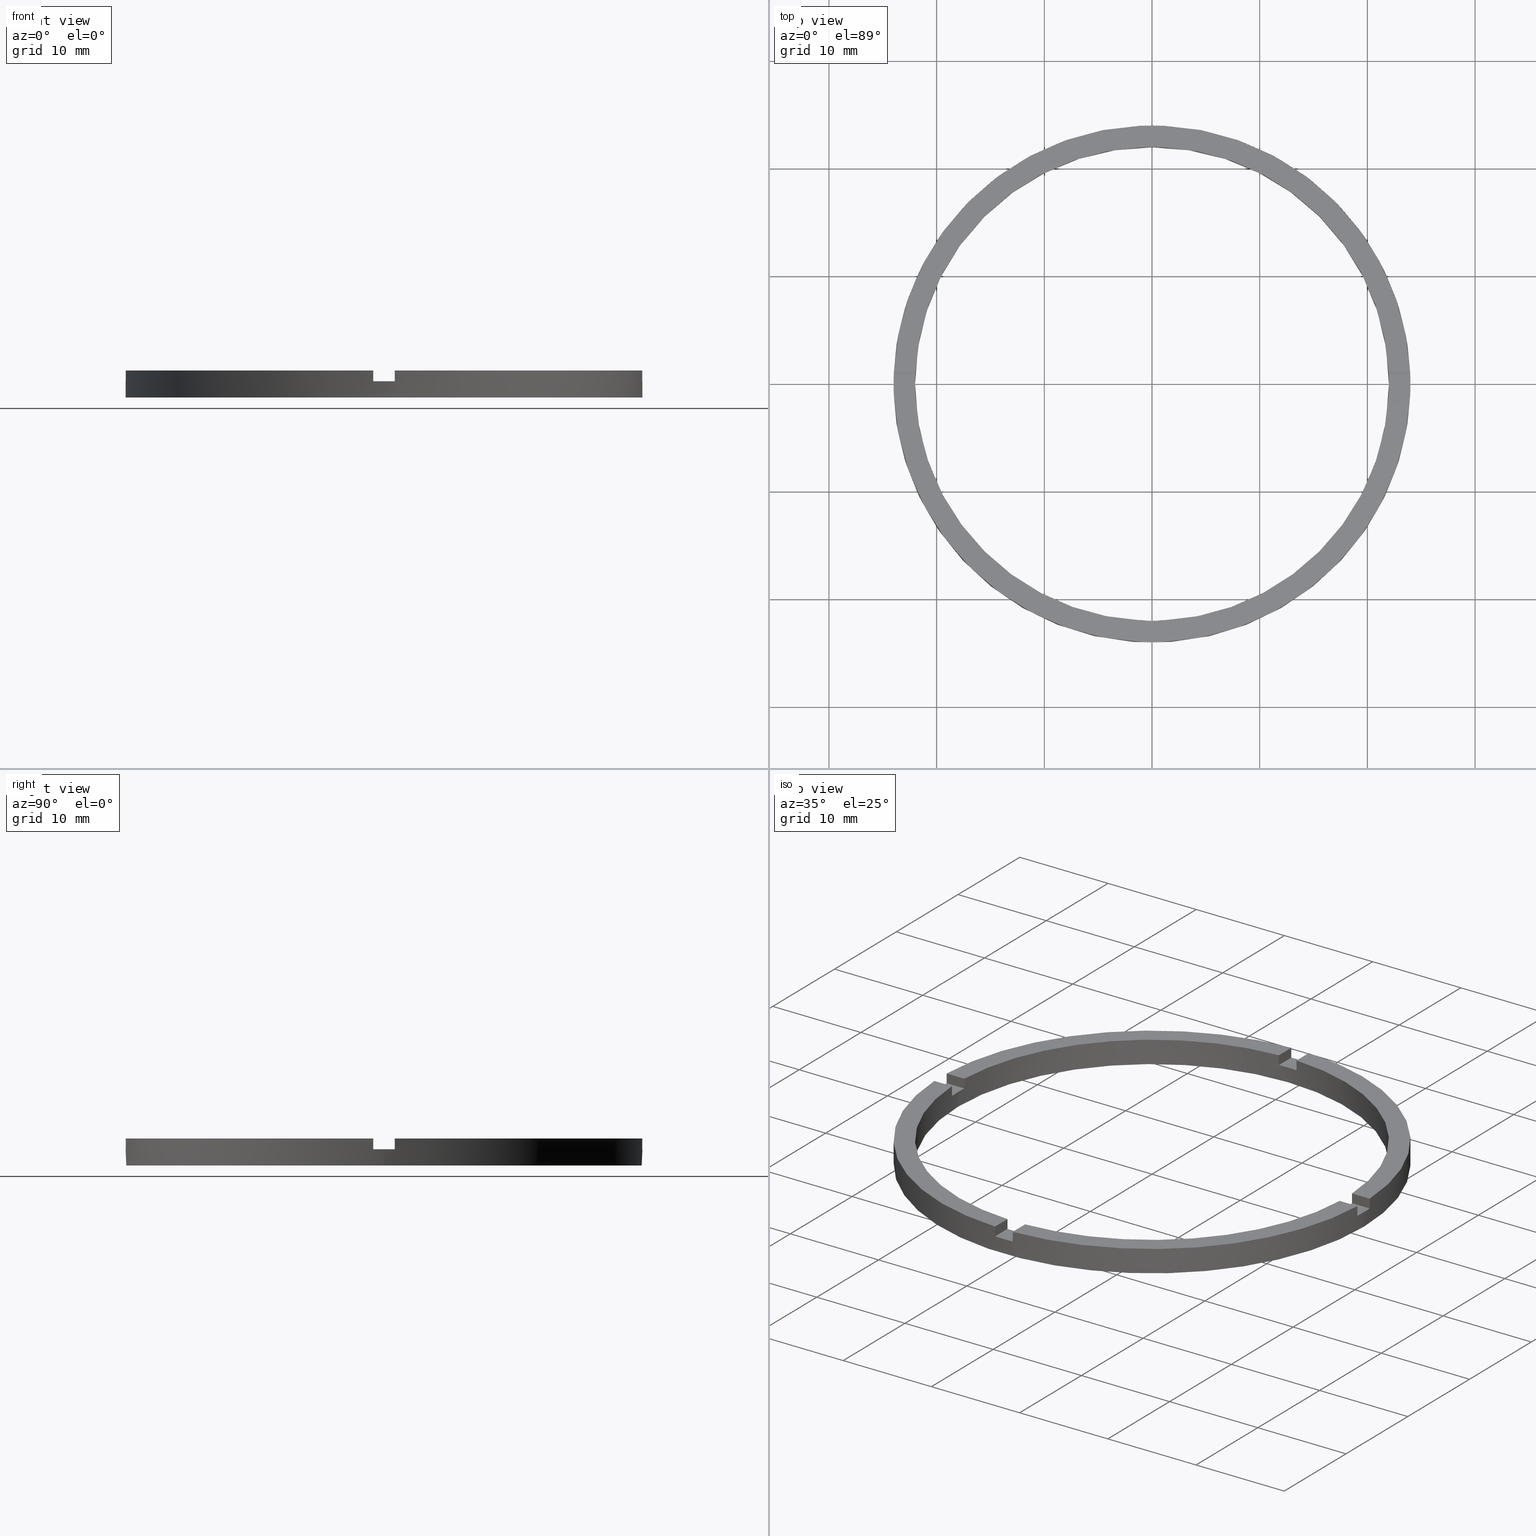
[diagram: canonical four-view strip — front | top / right | iso, engineering-drawing reading convention]
A machine part, canonical four-view strip (front | top / right | iso — engineering-drawing reading convention). The complete STEP part file that produces these views, byte-faithful:
ISO-10303-21;
HEADER;
FILE_DESCRIPTION (( 'STEP AP203' ),
    '1' );
FILE_NAME ('514100.step',
    '2024-12-26T02:37:30',
    ( 'MSI' ),
    ( '' ),
    'SwSTEP 2.0',
    'SolidWorks 2020',
    '' );
FILE_SCHEMA (( 'CONFIG_CONTROL_DESIGN' ));
ENDSEC;

DATA;
#1 = ORIENTED_EDGE ( 'NONE', *, *, #713, .F. ) ;
#2 = CARTESIAN_POINT ( 'NONE',  ( 0.9999999999998389066, -23.97915761656360800, 1.500000000000000000 ) ) ;
#3 = ORIENTED_EDGE ( 'NONE', *, *, #462, .F. ) ;
#4 = PERSON_AND_ORGANIZATION ( #110, #7 ) ;
#5 = VERTEX_POINT ( 'NONE', #335 ) ;
#6 = CALENDAR_DATE ( 2024, 26, 12 ) ;
#7 = ORGANIZATION ( 'δָ��', 'δָ��', '' ) ;
#8 = LOCAL_TIME ( 10, 37, 30.00000000000000000, #235 ) ;
#9 = COORDINATED_UNIVERSAL_TIME_OFFSET ( 8, 0, .AHEAD. ) ;
#10 = ORIENTED_EDGE ( 'NONE', *, *, #760, .F. ) ;
#11 = EDGE_CURVE ( 'NONE', #688, #603, #574, .T. ) ;
#12 = CARTESIAN_POINT ( 'NONE',  ( 21.97726097583590388, -1.000000000000157874, 2.500000000000000000 ) ) ;
#13 = VERTEX_POINT ( 'NONE', #703 ) ;
#14 = EDGE_CURVE ( 'NONE', #556, #679, #307, .T. ) ;
#15 = VERTEX_POINT ( 'NONE', #573 ) ;
#16 = DIRECTION ( 'NONE',  ( 0.000000000000000000, -0.000000000000000000, 1.000000000000000000 ) ) ;
#17 = APPROVAL_PERSON_ORGANIZATION ( #550, #662, #715 ) ;
#18 = ORIENTED_EDGE ( 'NONE', *, *, #378, .F. ) ;
#19 = VERTEX_POINT ( 'NONE', #158 ) ;
#20 = CARTESIAN_POINT ( 'NONE',  ( -1.000000000000162093, -14.00000000000018474, 1.500000000000000000 ) ) ;
#21 = CALENDAR_DATE ( 2024, 26, 12 ) ;
#22 = AXIS2_PLACEMENT_3D ( 'NONE', #420, #767, #382 ) ;
#23 = ORIENTED_EDGE ( 'NONE', *, *, #393, .F. ) ;
#24 = VERTEX_POINT ( 'NONE', #233 ) ;
#25 = EDGE_LOOP ( 'NONE', ( #77, #283, #562, #188 ) ) ;
#26 = DIRECTION ( 'NONE',  ( 1.000000000000000000, 4.336808689942017120E-17, 0.000000000000000000 ) ) ;
#27 = AXIS2_PLACEMENT_3D ( 'NONE', #129, #16, #354 ) ;
#28 = CARTESIAN_POINT ( 'NONE',  ( 0.000000000000000000, 0.000000000000000000, 0.000000000000000000 ) ) ;
#29 = VERTEX_POINT ( 'NONE', #502 ) ;
#30 = ORIENTED_EDGE ( 'NONE', *, *, #300, .T. ) ;
#31 = FACE_OUTER_BOUND ( 'NONE', #311, .T. ) ;
#32 = AXIS2_PLACEMENT_3D ( 'NONE', #211, #385, #513 ) ;
#33 = ORIENTED_EDGE ( 'NONE', *, *, #58, .F. ) ;
#34 = ORIENTED_EDGE ( 'NONE', *, *, #431, .F. ) ;
#35 = DIRECTION ( 'NONE',  ( -1.000000000000000000, -1.734723475976806848E-16, 0.000000000000000000 ) ) ;
#36 = ORIENTED_EDGE ( 'NONE', *, *, #616, .T. ) ;
#37 = VECTOR ( 'NONE', #154, 1000.000000000000000 ) ;
#38 = CARTESIAN_POINT ( 'NONE',  ( 0.9999999999998380185, -14.00000000000018474, 2.500000000000000000 ) ) ;
#39 = ORIENTED_EDGE ( 'NONE', *, *, #251, .F. ) ;
#40 = ORIENTED_EDGE ( 'NONE', *, *, #212, .T. ) ;
#41 = CARTESIAN_POINT ( 'NONE',  ( 0.000000000000000000, 0.000000000000000000, 1.500000000000000000 ) ) ;
#42 = ADVANCED_FACE ( 'NONE', ( #56 ), #698, .F. ) ;
#43 = ORIENTED_EDGE ( 'NONE', *, *, #488, .T. ) ;
#44 = DIRECTION ( 'NONE',  ( -0.000000000000000000, -0.000000000000000000, -1.000000000000000000 ) ) ;
#45 = ORIENTED_EDGE ( 'NONE', *, *, #681, .F. ) ;
#46 = CARTESIAN_POINT ( 'NONE',  ( 0.9999999999999735767, 23.97915761656360090, 2.500000000000000000 ) ) ;
#47 = ORIENTED_EDGE ( 'NONE', *, *, #419, .F. ) ;
#48 = AXIS2_PLACEMENT_3D ( 'NONE', #692, #708, #199 ) ;
#49 = ORIENTED_EDGE ( 'NONE', *, *, #256, .T. ) ;
#50 = ORIENTED_EDGE ( 'NONE', *, *, #303, .T. ) ;
#51 = DIRECTION ( 'NONE',  ( 1.000000000000000000, 0.000000000000000000, 0.000000000000000000 ) ) ;
#52 = LINE ( 'NONE', #604, #579 ) ;
#53 = ORIENTED_EDGE ( 'NONE', *, *, #103, .T. ) ;
#54 = PERSON_AND_ORGANIZATION_ROLE ( 'creator' ) ;
#55 = ORIENTED_EDGE ( 'NONE', *, *, #558, .F. ) ;
#56 = FACE_OUTER_BOUND ( 'NONE', #725, .T. ) ;
#57 = CARTESIAN_POINT ( 'NONE',  ( -23.97915761656360445, 0.9999999999999742428, 2.500000000000000000 ) ) ;
#58 = EDGE_CURVE ( 'NONE', #556, #5, #52, .T. ) ;
#59 = CLOSED_SHELL ( 'NONE', ( #709, #107, #119, #198, #667, #358, #353, #473, #347, #42, #511, #156, #336, #410, #504, #660, #146, #695, #452, #406, #201 ) ) ;
#60 = CIRCLE ( 'NONE', #86, 22.00000000000000000 ) ;
#61 = LINE ( 'NONE', #108, #315 ) ;
#62 = PLANE ( 'NONE',  #22 ) ;
#63 = ORIENTED_EDGE ( 'NONE', *, *, #576, .F. ) ;
#64 = ORIENTED_EDGE ( 'NONE', *, *, #142, .T. ) ;
#65 = CIRCLE ( 'NONE', #683, 24.00000000000000355 ) ;
#66 = VERTEX_POINT ( 'NONE', #467 ) ;
#67 = CIRCLE ( 'NONE', #519, 24.00000000000000355 ) ;
#68 = EDGE_LOOP ( 'NONE', ( #240, #36, #239, #534 ) ) ;
#69 = CIRCLE ( 'NONE', #140, 22.00000000000000000 ) ;
#70 = ORIENTED_EDGE ( 'NONE', *, *, #423, .F. ) ;
#71 = LINE ( 'NONE', #390, #627 ) ;
#72 = CARTESIAN_POINT ( 'NONE',  ( 0.000000000000000000, 0.000000000000000000, 2.500000000000000000 ) ) ;
#73 = VECTOR ( 'NONE', #35, 1000.000000000000000 ) ;
#74 = EDGE_CURVE ( 'NONE', #5, #433, #60, .T. ) ;
#75 = LINE ( 'NONE', #716, #326 ) ;
#76 = AXIS2_PLACEMENT_3D ( 'NONE', #133, #174, #425 ) ;
#77 = ORIENTED_EDGE ( 'NONE', *, *, #488, .F. ) ;
#78 = FACE_OUTER_BOUND ( 'NONE', #702, .T. ) ;
#79 = CARTESIAN_POINT ( 'NONE',  ( 0.000000000000000000, 0.000000000000000000, 1.500000000000000000 ) ) ;
#80 = LINE ( 'NONE', #149, #631 ) ;
#81 = VECTOR ( 'NONE', #564, 1000.000000000000000 ) ;
#82 = ORIENTED_EDGE ( 'NONE', *, *, #212, .F. ) ;
#83 = FACE_OUTER_BOUND ( 'NONE', #476, .T. ) ;
#84 = APPROVAL ( #334, 'δָ��' ) ;
#85 = EDGE_LOOP ( 'NONE', ( #53, #608, #696, #82 ) ) ;
#86 = AXIS2_PLACEMENT_3D ( 'NONE', #28, #748, #753 ) ;
#87 = LINE ( 'NONE', #12, #81 ) ;
#88 = CIRCLE ( 'NONE', #172, 24.00000000000000355 ) ;
#89 = CARTESIAN_POINT ( 'NONE',  ( -24.00000000000000355, 0.000000000000000000, 2.500000000000000000 ) ) ;
#90 = CYLINDRICAL_SURFACE ( 'NONE', #259, 22.00000000000000000 ) ;
#91 = LINE ( 'NONE', #673, #637 ) ;
#92 = VECTOR ( 'NONE', #435, 1000.000000000000000 ) ;
#93 = CIRCLE ( 'NONE', #643, 22.00000000000000000 ) ;
#94 = CARTESIAN_POINT ( 'NONE',  ( -21.97726097583591098, 0.9999999999999744649, 1.500000000000000000 ) ) ;
#95 = CIRCLE ( 'NONE', #192, 24.00000000000000355 ) ;
#96 = FACE_OUTER_BOUND ( 'NONE', #500, .T. ) ;
#97 = FACE_OUTER_BOUND ( 'NONE', #85, .T. ) ;
#98 = LINE ( 'NONE', #771, #92 ) ;
#99 = CIRCLE ( 'NONE', #665, 22.00000000000000000 ) ;
#100 = APPLICATION_PROTOCOL_DEFINITION ( 'international standard', 'config_control_design', 1994, #112 ) ;
#101 = LINE ( 'NONE', #668, #367 ) ;
#102 = DIRECTION ( 'NONE',  ( -1.000000000000000000, -1.301042606982605074E-16, 0.000000000000000000 ) ) ;
#103 = EDGE_CURVE ( 'NONE', #175, #153, #61, .T. ) ;
#104 = LINE ( 'NONE', #197, #118 ) ;
#105 = CIRCLE ( 'NONE', #308, 22.00000000000000000 ) ;
#106 = DIRECTION ( 'NONE',  ( -1.000000000000000000, -4.336808689942017120E-17, 0.000000000000000000 ) ) ;
#107 = ADVANCED_FACE ( 'NONE', ( #572 ), #286, .T. ) ;
#108 = CARTESIAN_POINT ( 'NONE',  ( -1.000000000000025979, 14.00000000000000355, 2.500000000000000000 ) ) ;
#109 = LINE ( 'NONE', #596, #375 ) ;
#110 = PERSON ( 'δָ��', 'δָ��', 'δָ��', ('δָ��'), ('δָ��'), ('δָ��') ) ;
#111 = EDGE_CURVE ( 'NONE', #291, #299, #279, .T. ) ;
#112 = APPLICATION_CONTEXT ( 'configuration controlled 3d designs of mechanical parts and assemblies' ) ;
#113 = LINE ( 'NONE', #349, #383 ) ;
#114 = FACE_OUTER_BOUND ( 'NONE', #570, .T. ) ;
#115 = VECTOR ( 'NONE', #357, 1000.000000000000000 ) ;
#116 = DIRECTION ( 'NONE',  ( 1.000000000000000000, 1.734723475976806848E-16, -0.000000000000000000 ) ) ;
#117 = PLANE ( 'NONE',  #48 ) ;
#118 = VECTOR ( 'NONE', #249, 1000.000000000000000 ) ;
#119 = ADVANCED_FACE ( 'NONE', ( #575 ), #117, .T. ) ;
#120 = DIRECTION ( 'NONE',  ( 0.000000000000000000, 0.000000000000000000, 1.000000000000000000 ) ) ;
#121 = LINE ( 'NONE', #602, #650 ) ;
#122 = EDGE_CURVE ( 'NONE', #288, #556, #600, .T. ) ;
#123 = PRODUCT_RELATED_PRODUCT_CATEGORY ( 'detail', '', ( #530 ) ) ;
#124 = EDGE_CURVE ( 'NONE', #693, #679, #316, .T. ) ;
#125 = DIRECTION ( 'NONE',  ( -0.000000000000000000, -0.000000000000000000, -1.000000000000000000 ) ) ;
#126 = DIRECTION ( 'NONE',  ( 1.000000000000000000, 0.000000000000000000, 0.000000000000000000 ) ) ;
#127 = DIRECTION ( 'NONE',  ( -0.000000000000000000, -0.000000000000000000, -1.000000000000000000 ) ) ;
#128 = AXIS2_PLACEMENT_3D ( 'NONE', #735, #543, #290 ) ;
#129 = CARTESIAN_POINT ( 'NONE',  ( 0.000000000000000000, 0.000000000000000000, 1.500000000000000000 ) ) ;
#130 = CARTESIAN_POINT ( 'NONE',  ( 0.000000000000000000, 0.000000000000000000, 2.500000000000000000 ) ) ;
#131 = CC_DESIGN_PERSON_AND_ORGANIZATION_ASSIGNMENT ( #775, #54, ( #458 ) ) ;
#132 = AXIS2_PLACEMENT_3D ( 'NONE', #412, #496, #205 ) ;
#133 = CARTESIAN_POINT ( 'NONE',  ( 0.000000000000000000, 0.000000000000000000, 2.500000000000000000 ) ) ;
#134 = DIRECTION ( 'NONE',  ( 0.000000000000000000, 0.000000000000000000, 1.000000000000000000 ) ) ;
#135 = MANIFOLD_SOLID_BREP ( '�г�-����1', #59 ) ;
#136 = CARTESIAN_POINT ( 'NONE',  ( 0.000000000000000000, 0.000000000000000000, 1.500000000000000000 ) ) ;
#137 = EDGE_CURVE ( 'NONE', #19, #691, #281, .T. ) ;
#138 = CARTESIAN_POINT ( 'NONE',  ( -1.000000000000025535, 21.97726097583590388, 1.500000000000000000 ) ) ;
#139 = EDGE_CURVE ( 'NONE', #440, #299, #294, .T. ) ;
#140 = AXIS2_PLACEMENT_3D ( 'NONE', #341, #515, #750 ) ;
#141 = DIRECTION ( 'NONE',  ( -0.000000000000000000, -0.000000000000000000, -1.000000000000000000 ) ) ;
#142 = EDGE_CURVE ( 'NONE', #24, #29, #302, .T. ) ;
#143 = EDGE_CURVE ( 'NONE', #66, #218, #586, .T. ) ;
#144 = EDGE_CURVE ( 'NONE', #271, #272, #306, .T. ) ;
#145 = AXIS2_PLACEMENT_3D ( 'NONE', #646, #493, #180 ) ;
#146 = ADVANCED_FACE ( 'NONE', ( #31 ), #675, .F. ) ;
#147 = SECURITY_CLASSIFICATION_LEVEL ( 'unclassified' ) ;
#148 = CARTESIAN_POINT ( 'NONE',  ( -22.00000000000000000, 0.000000000000000000, 0.000000000000000000 ) ) ;
#149 = CARTESIAN_POINT ( 'NONE',  ( 0.9999999999999740208, 14.00000000000000355, 2.500000000000000000 ) ) ;
#150 = CARTESIAN_POINT ( 'NONE',  ( 13.99999999999999822, 0.9999999999998419042, 1.500000000000000000 ) ) ;
#151 = DIRECTION ( 'NONE',  ( -0.000000000000000000, -0.000000000000000000, -1.000000000000000000 ) ) ;
#152 = DIRECTION ( 'NONE',  ( 1.000000000000000000, 0.000000000000000000, 0.000000000000000000 ) ) ;
#153 = VERTEX_POINT ( 'NONE', #614 ) ;
#154 = DIRECTION ( 'NONE',  ( -0.000000000000000000, -0.000000000000000000, -1.000000000000000000 ) ) ;
#155 = DIRECTION ( 'NONE',  ( -0.000000000000000000, -1.000000000000000000, -0.000000000000000000 ) ) ;
#156 = ADVANCED_FACE ( 'NONE', ( #592 ), #207, .T. ) ;
#157 = CARTESIAN_POINT ( 'NONE',  ( -23.97915761656360445, 0.9999999999999742428, 1.500000000000000000 ) ) ;
#158 = CARTESIAN_POINT ( 'NONE',  ( -23.97915761656360445, -1.000000000000025757, 2.500000000000000000 ) ) ;
#159 = EDGE_LOOP ( 'NONE', ( #442, #444, #701, #581 ) ) ;
#160 = EDGE_CURVE ( 'NONE', #153, #384, #359, .T. ) ;
#161 = ORIENTED_EDGE ( 'NONE', *, *, #578, .F. ) ;
#162 = DIRECTION ( 'NONE',  ( -4.336808689942017120E-17, 1.000000000000000000, 0.000000000000000000 ) ) ;
#163 = EDGE_LOOP ( 'NONE', ( #179, #526, #571, #477 ) ) ;
#164 = DIRECTION ( 'NONE',  ( 1.000000000000000000, 0.000000000000000000, 0.000000000000000000 ) ) ;
#165 = VERTEX_POINT ( 'NONE', #772 ) ;
#166 = ORIENTED_EDGE ( 'NONE', *, *, #766, .F. ) ;
#167 = DIRECTION ( 'NONE',  ( 0.000000000000000000, 0.000000000000000000, 1.000000000000000000 ) ) ;
#168 = AXIS2_PLACEMENT_3D ( 'NONE', #523, #620, #697 ) ;
#169 = ORIENTED_EDGE ( 'NONE', *, *, #713, .T. ) ;
#170 = VERTEX_POINT ( 'NONE', #379 ) ;
#171 = APPROVAL ( #598, 'δָ��' ) ;
#172 = AXIS2_PLACEMENT_3D ( 'NONE', #446, #178, #689 ) ;
#173 = EDGE_CURVE ( 'NONE', #433, #5, #93, .T. ) ;
#174 = DIRECTION ( 'NONE',  ( -0.000000000000000000, -0.000000000000000000, -1.000000000000000000 ) ) ;
#175 = VERTEX_POINT ( 'NONE', #536 ) ;
#176 = DIRECTION ( 'NONE',  ( 1.000000000000000000, 0.000000000000000000, 0.000000000000000000 ) ) ;
#177 = CARTESIAN_POINT ( 'NONE',  ( 0.000000000000000000, 0.000000000000000000, 2.500000000000000000 ) ) ;
#178 = DIRECTION ( 'NONE',  ( 0.000000000000000000, 0.000000000000000000, 1.000000000000000000 ) ) ;
#179 = ORIENTED_EDGE ( 'NONE', *, *, #558, .T. ) ;
#180 = DIRECTION ( 'NONE',  ( 1.000000000000000000, 0.000000000000000000, -0.000000000000000000 ) ) ;
#181 = EDGE_CURVE ( 'NONE', #384, #603, #91, .T. ) ;
#182 = ORIENTED_EDGE ( 'NONE', *, *, #415, .F. ) ;
#183 = ORIENTED_EDGE ( 'NONE', *, *, #768, .F. ) ;
#184 = DIRECTION ( 'NONE',  ( -0.000000000000000000, -0.000000000000000000, -1.000000000000000000 ) ) ;
#185 = ORIENTED_EDGE ( 'NONE', *, *, #622, .F. ) ;
#186 = ORIENTED_EDGE ( 'NONE', *, *, #58, .T. ) ;
#187 = DIRECTION ( 'NONE',  ( 0.000000000000000000, 0.000000000000000000, 1.000000000000000000 ) ) ;
#188 = ORIENTED_EDGE ( 'NONE', *, *, #11, .F. ) ;
#189 = CARTESIAN_POINT ( 'NONE',  ( 0.9999999999998380185, -14.00000000000018474, 1.500000000000000000 ) ) ;
#190 = ORIENTED_EDGE ( 'NONE', *, *, #503, .T. ) ;
#191 = ORIENTED_EDGE ( 'NONE', *, *, #378, .T. ) ;
#192 = AXIS2_PLACEMENT_3D ( 'NONE', #136, #428, #176 ) ;
#193 = DIRECTION ( 'NONE',  ( -1.000000000000000000, 0.000000000000000000, 0.000000000000000000 ) ) ;
#194 = DIRECTION ( 'NONE',  ( -0.000000000000000000, -0.000000000000000000, -1.000000000000000000 ) ) ;
#195 = AXIS2_PLACEMENT_3D ( 'NONE', #130, #727, #518 ) ;
#196 = CARTESIAN_POINT ( 'NONE',  ( 0.000000000000000000, 0.000000000000000000, 1.500000000000000000 ) ) ;
#197 = CARTESIAN_POINT ( 'NONE',  ( 0.9999999999999740208, 14.00000000000000355, 1.500000000000000000 ) ) ;
#198 = ADVANCED_FACE ( 'NONE', ( #83 ), #680, .T. ) ;
#199 = DIRECTION ( 'NONE',  ( 1.000000000000000000, 0.000000000000000000, -0.000000000000000000 ) ) ;
#200 = CARTESIAN_POINT ( 'NONE',  ( -1.000000000000025979, 14.00000000000000355, 1.500000000000000000 ) ) ;
#201 = ADVANCED_FACE ( 'NONE', ( #617 ), #388, .T. ) ;
#202 = CARTESIAN_POINT ( 'NONE',  ( -23.97915761656360445, -1.000000000000025757, 1.500000000000000000 ) ) ;
#203 = VERTEX_POINT ( 'NONE', #391 ) ;
#204 = CARTESIAN_POINT ( 'NONE',  ( 21.97726097583591809, 0.9999999999998421263, 2.500000000000000000 ) ) ;
#205 = DIRECTION ( 'NONE',  ( 1.000000000000000000, 0.000000000000000000, 0.000000000000000000 ) ) ;
#206 = APPROVAL_ROLE ( '' ) ;
#207 = PLANE ( 'NONE',  #313 ) ;
#208 = CARTESIAN_POINT ( 'NONE',  ( 0.9999999999998393507, -23.97915761656361155, 2.500000000000000000 ) ) ;
#209 = CIRCLE ( 'NONE', #736, 24.00000000000000355 ) ;
#210 = CARTESIAN_POINT ( 'NONE',  ( -1.000000000000160760, -23.97915761656359734, 2.500000000000000000 ) ) ;
#211 = CARTESIAN_POINT ( 'NONE',  ( 13.99999999999999822, -1.000000000000158096, 1.500000000000000000 ) ) ;
#212 = EDGE_CURVE ( 'NONE', #175, #567, #348, .T. ) ;
#213 = DIRECTION ( 'NONE',  ( 0.000000000000000000, 0.000000000000000000, 1.000000000000000000 ) ) ;
#214 = CARTESIAN_POINT ( 'NONE',  ( 0.000000000000000000, 0.000000000000000000, 2.500000000000000000 ) ) ;
#215 = CARTESIAN_POINT ( 'NONE',  ( 21.97726097583590388, -1.000000000000157874, 2.500000000000000000 ) ) ;
#216 = AXIS2_PLACEMENT_3D ( 'NONE', #625, #540, #633 ) ;
#217 = EDGE_LOOP ( 'NONE', ( #531, #455, #464, #327, #569, #580, #275, #23, #560, #18, #50, #301 ) ) ;
#218 = VERTEX_POINT ( 'NONE', #551 ) ;
#219 = AXIS2_PLACEMENT_3D ( 'NONE', #755, #486, #418 ) ;
#220 = ORIENTED_EDGE ( 'NONE', *, *, #487, .T. ) ;
#221 = ORIENTED_EDGE ( 'NONE', *, *, #516, .T. ) ;
#222 = VERTEX_POINT ( 'NONE', #138 ) ;
#223 = DIRECTION ( 'NONE',  ( 1.000000000000000000, 0.000000000000000000, -0.000000000000000000 ) ) ;
#224 = ORIENTED_EDGE ( 'NONE', *, *, #137, .F. ) ;
#225 = CARTESIAN_POINT ( 'NONE',  ( 0.9999999999998380185, -14.00000000000018474, 1.500000000000000000 ) ) ;
#226 = CALENDAR_DATE ( 2024, 26, 12 ) ;
#227 = CIRCLE ( 'NONE', #27, 24.00000000000000355 ) ;
#228 = PLANE ( 'NONE',  #368 ) ;
#229 = DIRECTION ( 'NONE',  ( 1.000000000000000000, 1.301042606982605074E-16, 0.000000000000000000 ) ) ;
#230 = APPROVAL_PERSON_ORGANIZATION ( #557, #171, #206 ) ;
#231 = DIRECTION ( 'NONE',  ( 0.000000000000000000, 0.000000000000000000, 1.000000000000000000 ) ) ;
#232 = LINE ( 'NONE', #370, #520 ) ;
#233 = CARTESIAN_POINT ( 'NONE',  ( -1.000000000000160538, -21.97726097583589677, 2.500000000000000000 ) ) ;
#234 = EDGE_CURVE ( 'NONE', #203, #759, #88, .T. ) ;
#235 = COORDINATED_UNIVERSAL_TIME_OFFSET ( 8, 0, .AHEAD. ) ;
#236 = DATE_TIME_ROLE ( 'classification_date' ) ;
#237 = CARTESIAN_POINT ( 'NONE',  ( -21.97726097583590743, -1.000000000000025535, 1.500000000000000000 ) ) ;
#238 = ORIENTED_EDGE ( 'NONE', *, *, #256, .F. ) ;
#239 = ORIENTED_EDGE ( 'NONE', *, *, #181, .F. ) ;
#240 = ORIENTED_EDGE ( 'NONE', *, *, #103, .F. ) ;
#241 = CARTESIAN_POINT ( 'NONE',  ( 0.000000000000000000, 0.000000000000000000, 1.500000000000000000 ) ) ;
#242 = ORIENTED_EDGE ( 'NONE', *, *, #111, .F. ) ;
#243 = LOCAL_TIME ( 10, 37, 30.00000000000000000, #277 ) ;
#244 = CARTESIAN_POINT ( 'NONE',  ( 0.000000000000000000, 0.000000000000000000, 0.000000000000000000 ) ) ;
#245 = ORIENTED_EDGE ( 'NONE', *, *, #143, .T. ) ;
#246 = AXIS2_PLACEMENT_3D ( 'NONE', #655, #151, #193 ) ;
#247 = ORIENTED_EDGE ( 'NONE', *, *, #142, .F. ) ;
#248 = DATE_AND_TIME ( #783, #525 ) ;
#249 = DIRECTION ( 'NONE',  ( 0.000000000000000000, 1.000000000000000000, 0.000000000000000000 ) ) ;
#250 = SHAPE_DEFINITION_REPRESENTATION ( #723, #591 ) ;
#251 = EDGE_CURVE ( 'NONE', #505, #24, #99, .T. ) ;
#252 = CC_DESIGN_PERSON_AND_ORGANIZATION_ASSIGNMENT ( #778, #583, ( #492 ) ) ;
#253 = EDGE_LOOP ( 'NONE', ( #731, #465, #524, #730 ) ) ;
#254 = DIRECTION ( 'NONE',  ( -1.000000000000000000, -4.336808689942017120E-17, -0.000000000000000000 ) ) ;
#255 = APPROVAL_DATE_TIME ( #269, #662 ) ;
#256 = EDGE_CURVE ( 'NONE', #288, #170, #345, .T. ) ;
#257 = LINE ( 'NONE', #758, #774 ) ;
#258 = CARTESIAN_POINT ( 'NONE',  ( 21.97726097583591809, 0.9999999999998421263, 2.500000000000000000 ) ) ;
#259 = AXIS2_PLACEMENT_3D ( 'NONE', #499, #559, #652 ) ;
#260 = CARTESIAN_POINT ( 'NONE',  ( -23.97915761656360445, -1.000000000000025757, 2.500000000000000000 ) ) ;
#261 = DIRECTION ( 'NONE',  ( 0.000000000000000000, 0.000000000000000000, 1.000000000000000000 ) ) ;
#262 = CARTESIAN_POINT ( 'NONE',  ( 0.000000000000000000, 0.000000000000000000, 1.500000000000000000 ) ) ;
#263 = VERTEX_POINT ( 'NONE', #215 ) ;
#264 = LINE ( 'NONE', #411, #538 ) ;
#265 = ORIENTED_EDGE ( 'NONE', *, *, #423, .T. ) ;
#266 = ORIENTED_EDGE ( 'NONE', *, *, #398, .F. ) ;
#267 = CC_DESIGN_APPROVAL ( #84, ( #739 ) ) ;
#268 = DIRECTION ( 'NONE',  ( -1.000000000000000000, -4.336808689942017120E-17, -0.000000000000000000 ) ) ;
#269 = DATE_AND_TIME ( #535, #781 ) ;
#270 = AXIS2_PLACEMENT_3D ( 'NONE', #471, #711, #478 ) ;
#271 = VERTEX_POINT ( 'NONE', #94 ) ;
#272 = VERTEX_POINT ( 'NONE', #392 ) ;
#273 = DATE_AND_TIME ( #21, #554 ) ;
#274 = PERSON_AND_ORGANIZATION_ROLE ( 'creator' ) ;
#275 = ORIENTED_EDGE ( 'NONE', *, *, #449, .T. ) ;
#276 = VERTEX_POINT ( 'NONE', #394 ) ;
#277 = COORDINATED_UNIVERSAL_TIME_OFFSET ( 8, 0, .AHEAD. ) ;
#278 = ORIENTED_EDGE ( 'NONE', *, *, #503, .F. ) ;
#279 = LINE ( 'NONE', #225, #585 ) ;
#280 = EDGE_LOOP ( 'NONE', ( #722, #577, #242, #3 ) ) ;
#281 = LINE ( 'NONE', #260, #37 ) ;
#282 = CARTESIAN_POINT ( 'NONE',  ( -1.000000000000160538, -21.97726097583589677, 1.500000000000000000 ) ) ;
#283 = ORIENTED_EDGE ( 'NONE', *, *, #740, .T. ) ;
#284 = EDGE_LOOP ( 'NONE', ( #161, #706, #319, #568 ) ) ;
#285 = DIRECTION ( 'NONE',  ( 1.000000000000000000, 0.000000000000000000, 0.000000000000000000 ) ) ;
#286 = CYLINDRICAL_SURFACE ( 'NONE', #746, 24.00000000000000355 ) ;
#287 = ORIENTED_EDGE ( 'NONE', *, *, #74, .T. ) ;
#288 = VERTEX_POINT ( 'NONE', #734 ) ;
#289 = ORIENTED_EDGE ( 'NONE', *, *, #300, .F. ) ;
#290 = DIRECTION ( 'NONE',  ( 1.000000000000000000, 0.000000000000000000, 0.000000000000000000 ) ) ;
#291 = VERTEX_POINT ( 'NONE', #2 ) ;
#292 = VECTOR ( 'NONE', #194, 1000.000000000000000 ) ;
#293 = ORIENTED_EDGE ( 'NONE', *, *, #453, .F. ) ;
#294 = CIRCLE ( 'NONE', #132, 22.00000000000000000 ) ;
#295 = DIRECTION ( 'NONE',  ( 1.000000000000000000, 0.000000000000000000, 0.000000000000000000 ) ) ;
#296 = DIRECTION ( 'NONE',  ( 1.000000000000000000, 0.000000000000000000, -0.000000000000000000 ) ) ;
#297 = DIRECTION ( 'NONE',  ( 0.000000000000000000, 0.000000000000000000, 1.000000000000000000 ) ) ;
#298 = EDGE_LOOP ( 'NONE', ( #779, #191, #190, #293, #782, #43 ) ) ;
#299 = VERTEX_POINT ( 'NONE', #439 ) ;
#300 = EDGE_CURVE ( 'NONE', #288, #263, #87, .T. ) ;
#301 = ORIENTED_EDGE ( 'NONE', *, *, #768, .T. ) ;
#302 = LINE ( 'NONE', #416, #566 ) ;
#303 = EDGE_CURVE ( 'NONE', #521, #317, #342, .T. ) ;
#304 = ORIENTED_EDGE ( 'NONE', *, *, #622, .T. ) ;
#305 = DIRECTION ( 'NONE',  ( 0.000000000000000000, 0.000000000000000000, 1.000000000000000000 ) ) ;
#306 = CIRCLE ( 'NONE', #219, 22.00000000000000000 ) ;
#307 = CIRCLE ( 'NONE', #376, 22.00000000000000000 ) ;
#308 = AXIS2_PLACEMENT_3D ( 'NONE', #747, #409, #663 ) ;
#309 = CARTESIAN_POINT ( 'NONE',  ( 0.000000000000000000, 0.000000000000000000, 0.000000000000000000 ) ) ;
#310 = EDGE_LOOP ( 'NONE', ( #757, #765, #265, #593, #47, #762, #549, #40, #10, #221, #553, #321 ) ) ;
#311 = EDGE_LOOP ( 'NONE', ( #238, #30, #304, #34 ) ) ;
#312 = CC_DESIGN_SECURITY_CLASSIFICATION ( #739, ( #492 ) ) ;
#313 = AXIS2_PLACEMENT_3D ( 'NONE', #262, #362, #719 ) ;
#314 = EDGE_CURVE ( 'NONE', #272, #433, #323, .T. ) ;
#315 = VECTOR ( 'NONE', #687, 1000.000000000000000 ) ;
#316 = LINE ( 'NONE', #204, #292 ) ;
#317 = VERTEX_POINT ( 'NONE', #686 ) ;
#318 = CIRCLE ( 'NONE', #742, 24.00000000000000355 ) ;
#319 = ORIENTED_EDGE ( 'NONE', *, *, #415, .T. ) ;
#320 = LINE ( 'NONE', #451, #73 ) ;
#321 = ORIENTED_EDGE ( 'NONE', *, *, #363, .T. ) ;
#322 = DIRECTION ( 'NONE',  ( -1.301042606982605074E-16, 1.000000000000000000, -0.000000000000000000 ) ) ;
#323 = LINE ( 'NONE', #443, #623 ) ;
#324 = LINE ( 'NONE', #387, #629 ) ;
#325 = CARTESIAN_POINT ( 'NONE',  ( 24.00000000000000355, 2.939152317953648289E-15, 0.000000000000000000 ) ) ;
#326 = VECTOR ( 'NONE', #328, 1000.000000000000000 ) ;
#327 = ORIENTED_EDGE ( 'NONE', *, *, #143, .F. ) ;
#328 = DIRECTION ( 'NONE',  ( -0.000000000000000000, -0.000000000000000000, -1.000000000000000000 ) ) ;
#329 = FACE_OUTER_BOUND ( 'NONE', #253, .T. ) ;
#330 = ORIENTED_EDGE ( 'NONE', *, *, #487, .F. ) ;
#331 = CARTESIAN_POINT ( 'NONE',  ( -23.97915761656360445, 0.9999999999999742428, 2.500000000000000000 ) ) ;
#332 = EDGE_LOOP ( 'NONE', ( #537, #461, #64, #459 ) ) ;
#333 = FACE_OUTER_BOUND ( 'NONE', #284, .T. ) ;
#334 = APPROVAL_STATUS ( 'not_yet_approved' ) ;
#335 = CARTESIAN_POINT ( 'NONE',  ( 22.00000000000000000, 2.694222958124176809E-15, 0.000000000000000000 ) ) ;
#336 = ADVANCED_FACE ( 'NONE', ( #340 ), #743, .F. ) ;
#337 = DIRECTION ( 'NONE',  ( 1.301042606982605074E-16, -1.000000000000000000, 0.000000000000000000 ) ) ;
#338 = LINE ( 'NONE', #501, #615 ) ;
#339 = ORIENTED_EDGE ( 'NONE', *, *, #122, .F. ) ;
#340 = FACE_OUTER_BOUND ( 'NONE', #280, .T. ) ;
#341 = CARTESIAN_POINT ( 'NONE',  ( 0.000000000000000000, 0.000000000000000000, 2.500000000000000000 ) ) ;
#342 = LINE ( 'NONE', #89, #609 ) ;
#343 = ORIENTED_EDGE ( 'NONE', *, *, #160, .T. ) ;
#344 = CARTESIAN_POINT ( 'NONE',  ( -14.00000000000019007, -1.000000000000023981, 1.500000000000000000 ) ) ;
#345 = LINE ( 'NONE', #648, #605 ) ;
#346 = APPLICATION_PROTOCOL_DEFINITION ( 'international standard', 'config_control_design', 1994, #672 ) ;
#347 = ADVANCED_FACE ( 'NONE', ( #96 ), #90, .F. ) ;
#348 = LINE ( 'NONE', #436, #624 ) ;
#349 = CARTESIAN_POINT ( 'NONE',  ( -1.000000000000160982, -21.97726097583590033, 2.500000000000000000 ) ) ;
#350 = FACE_OUTER_BOUND ( 'NONE', #332, .T. ) ;
#351 = DIRECTION ( 'NONE',  ( 0.000000000000000000, 0.000000000000000000, 1.000000000000000000 ) ) ;
#352 = CIRCLE ( 'NONE', #638, 24.00000000000000355 ) ;
#353 = ADVANCED_FACE ( 'NONE', ( #78, #639 ), #737, .F. ) ;
#354 = DIRECTION ( 'NONE',  ( 1.000000000000000000, 0.000000000000000000, 0.000000000000000000 ) ) ;
#355 = CIRCLE ( 'NONE', #216, 22.00000000000000000 ) ;
#356 = CIRCLE ( 'NONE', #472, 22.00000000000000000 ) ;
#357 = DIRECTION ( 'NONE',  ( 1.301042606982605074E-16, -1.000000000000000000, 0.000000000000000000 ) ) ;
#358 = ADVANCED_FACE ( 'NONE', ( #364 ), #441, .T. ) ;
#359 = CIRCLE ( 'NONE', #494, 22.00000000000000000 ) ;
#360 = VECTOR ( 'NONE', #485, 1000.000000000000000 ) ;
#361 = DIRECTION ( 'NONE',  ( -0.000000000000000000, 0.000000000000000000, 1.000000000000000000 ) ) ;
#362 = DIRECTION ( 'NONE',  ( 0.000000000000000000, 0.000000000000000000, 1.000000000000000000 ) ) ;
#363 = EDGE_CURVE ( 'NONE', #203, #509, #71, .T. ) ;
#364 = FACE_OUTER_BOUND ( 'NONE', #437, .T. ) ;
#365 = LINE ( 'NONE', #200, #377 ) ;
#366 = CARTESIAN_POINT ( 'NONE',  ( 0.000000000000000000, 0.000000000000000000, 2.500000000000000000 ) ) ;
#367 = VECTOR ( 'NONE', #761, 1000.000000000000000 ) ;
#368 = AXIS2_PLACEMENT_3D ( 'NONE', #399, #448, #403 ) ;
#369 = VECTOR ( 'NONE', #498, 1000.000000000000000 ) ;
#370 = CARTESIAN_POINT ( 'NONE',  ( 13.99999999999999822, 0.9999999999998419042, 1.500000000000000000 ) ) ;
#371 = AXIS2_PLACEMENT_3D ( 'NONE', #150, #162, #106 ) ;
#372 = LINE ( 'NONE', #674, #649 ) ;
#373 = CC_DESIGN_APPROVAL ( #662, ( #458 ) ) ;
#374 = CYLINDRICAL_SURFACE ( 'NONE', #246, 22.00000000000000000 ) ;
#375 = VECTOR ( 'NONE', #125, 1000.000000000000000 ) ;
#376 = AXIS2_PLACEMENT_3D ( 'NONE', #241, #187, #126 ) ;
#377 = VECTOR ( 'NONE', #155, 1000.000000000000000 ) ;
#378 = EDGE_CURVE ( 'NONE', #521, #691, #610, .T. ) ;
#379 = CARTESIAN_POINT ( 'NONE',  ( 23.97915761656359734, -1.000000000000157652, 1.500000000000000000 ) ) ;
#380 = FACE_OUTER_BOUND ( 'NONE', #720, .T. ) ;
#381 = CIRCLE ( 'NONE', #684, 24.00000000000000355 ) ;
#382 = DIRECTION ( 'NONE',  ( 0.000000000000000000, 0.000000000000000000, 1.000000000000000000 ) ) ;
#383 = VECTOR ( 'NONE', #167, 1000.000000000000000 ) ;
#384 = VERTEX_POINT ( 'NONE', #636 ) ;
#385 = DIRECTION ( 'NONE',  ( 4.336808689942017120E-17, -1.000000000000000000, 0.000000000000000000 ) ) ;
#386 = DIRECTION ( 'NONE',  ( 1.000000000000000000, 0.000000000000000000, 0.000000000000000000 ) ) ;
#387 = CARTESIAN_POINT ( 'NONE',  ( 0.9999999999998391287, -21.97726097583591809, 2.500000000000000000 ) ) ;
#388 = PLANE ( 'NONE',  #270 ) ;
#389 = DESIGN_CONTEXT ( 'detailed design', #672, 'design' ) ;
#390 = CARTESIAN_POINT ( 'NONE',  ( 23.97915761656361155, 0.9999999999998423483, 2.500000000000000000 ) ) ;
#391 = CARTESIAN_POINT ( 'NONE',  ( 23.97915761656361155, 0.9999999999998423483, 2.500000000000000000 ) ) ;
#392 = CARTESIAN_POINT ( 'NONE',  ( -22.00000000000000000, 0.000000000000000000, 1.500000000000000000 ) ) ;
#393 = EDGE_CURVE ( 'NONE', #19, #29, #67, .T. ) ;
#394 = CARTESIAN_POINT ( 'NONE',  ( 0.9999999999999735767, 21.97726097583590743, 1.500000000000000000 ) ) ;
#395 = CC_DESIGN_APPROVAL ( #171, ( #492 ) ) ;
#396 = EDGE_CURVE ( 'NONE', #13, #509, #95, .T. ) ;
#397 = CARTESIAN_POINT ( 'NONE',  ( 0.000000000000000000, 0.000000000000000000, 2.500000000000000000 ) ) ;
#398 = EDGE_CURVE ( 'NONE', #165, #299, #324, .T. ) ;
#399 = CARTESIAN_POINT ( 'NONE',  ( 0.9999999999999740208, 14.00000000000000355, 1.500000000000000000 ) ) ;
#400 = AXIS2_PLACEMENT_3D ( 'NONE', #309, #438, #223 ) ;
#401 = DIRECTION ( 'NONE',  ( 1.000000000000000000, 4.336808689942017120E-17, 0.000000000000000000 ) ) ;
#402 = APPROVAL_ROLE ( '' ) ;
#403 = DIRECTION ( 'NONE',  ( 0.000000000000000000, 0.000000000000000000, -1.000000000000000000 ) ) ;
#404 = EDGE_CURVE ( 'NONE', #276, #15, #98, .T. ) ;
#405 = DIRECTION ( 'NONE',  ( 0.000000000000000000, 0.000000000000000000, 1.000000000000000000 ) ) ;
#406 = ADVANCED_FACE ( 'NONE', ( #333 ), #228, .F. ) ;
#407 = DIRECTION ( 'NONE',  ( -0.000000000000000000, -0.000000000000000000, -1.000000000000000000 ) ) ;
#408 = APPROVAL_STATUS ( 'not_yet_approved' ) ;
#409 = DIRECTION ( 'NONE',  ( 0.000000000000000000, 0.000000000000000000, 1.000000000000000000 ) ) ;
#410 = ADVANCED_FACE ( 'NONE', ( #350 ), #656, .F. ) ;
#411 = CARTESIAN_POINT ( 'NONE',  ( -21.97726097583591098, 0.9999999999999744649, 2.500000000000000000 ) ) ;
#412 = CARTESIAN_POINT ( 'NONE',  ( 0.000000000000000000, 0.000000000000000000, 1.500000000000000000 ) ) ;
#413 =( LENGTH_UNIT ( ) NAMED_UNIT ( * ) SI_UNIT ( .MILLI., .METRE. ) );
#414 = PLANE ( 'NONE',  #661 ) ;
#415 = EDGE_CURVE ( 'NONE', #15, #759, #80, .T. ) ;
#416 = CARTESIAN_POINT ( 'NONE',  ( -1.000000000000162093, -14.00000000000018474, 2.500000000000000000 ) ) ;
#417 = CARTESIAN_POINT ( 'NONE',  ( -14.00000000000019007, -1.000000000000023981, 2.500000000000000000 ) ) ;
#418 = DIRECTION ( 'NONE',  ( 1.000000000000000000, 0.000000000000000000, 0.000000000000000000 ) ) ;
#419 = EDGE_CURVE ( 'NONE', #688, #521, #352, .T. ) ;
#420 = CARTESIAN_POINT ( 'NONE',  ( -1.000000000000025979, 14.00000000000000355, 1.500000000000000000 ) ) ;
#421 = CARTESIAN_POINT ( 'NONE',  ( 0.000000000000000000, 0.000000000000000000, 0.000000000000000000 ) ) ;
#422 =( GEOMETRIC_REPRESENTATION_CONTEXT ( 3 ) GLOBAL_UNCERTAINTY_ASSIGNED_CONTEXT ( ( #594 ) ) GLOBAL_UNIT_ASSIGNED_CONTEXT ( ( #413, #694, #512 ) ) REPRESENTATION_CONTEXT ( 'NONE', 'WORKASPACE' ) );
#423 = EDGE_CURVE ( 'NONE', #430, #317, #318, .T. ) ;
#424 = CC_DESIGN_DATE_AND_TIME_ASSIGNMENT ( #522, #236, ( #739 ) ) ;
#425 = DIRECTION ( 'NONE',  ( -1.000000000000000000, 0.000000000000000000, 0.000000000000000000 ) ) ;
#426 = AXIS2_PLACEMENT_3D ( 'NONE', #72, #670, #296 ) ;
#427 = EDGE_CURVE ( 'NONE', #170, #13, #65, .T. ) ;
#428 = DIRECTION ( 'NONE',  ( 0.000000000000000000, 0.000000000000000000, 1.000000000000000000 ) ) ;
#429 = DIRECTION ( 'NONE',  ( 0.000000000000000000, 0.000000000000000000, 1.000000000000000000 ) ) ;
#430 = VERTEX_POINT ( 'NONE', #325 ) ;
#431 = EDGE_CURVE ( 'NONE', #170, #218, #601, .T. ) ;
#432 = AXIS2_PLACEMENT_3D ( 'NONE', #189, #229, #450 ) ;
#433 = VERTEX_POINT ( 'NONE', #148 ) ;
#434 = VERTEX_POINT ( 'NONE', #237 ) ;
#435 = DIRECTION ( 'NONE',  ( 0.000000000000000000, 0.000000000000000000, 1.000000000000000000 ) ) ;
#436 = CARTESIAN_POINT ( 'NONE',  ( -1.000000000000025979, 23.97915761656360445, 2.500000000000000000 ) ) ;
#437 = EDGE_LOOP ( 'NONE', ( #247, #39, #1, #724 ) ) ;
#438 = DIRECTION ( 'NONE',  ( 0.000000000000000000, 0.000000000000000000, 1.000000000000000000 ) ) ;
#439 = CARTESIAN_POINT ( 'NONE',  ( 0.9999999999998386846, -21.97726097583591454, 1.500000000000000000 ) ) ;
#440 = VERTEX_POINT ( 'NONE', #282 ) ;
#441 = PLANE ( 'NONE',  #145 ) ;
#442 = ORIENTED_EDGE ( 'NONE', *, *, #760, .T. ) ;
#443 = CARTESIAN_POINT ( 'NONE',  ( -22.00000000000000000, 0.000000000000000000, 2.500000000000000000 ) ) ;
#444 = ORIENTED_EDGE ( 'NONE', *, *, #712, .T. ) ;
#445 = ORIENTED_EDGE ( 'NONE', *, *, #741, .T. ) ;
#446 = CARTESIAN_POINT ( 'NONE',  ( 0.000000000000000000, 0.000000000000000000, 2.500000000000000000 ) ) ;
#447 = DIRECTION ( 'NONE',  ( 1.000000000000000000, 0.000000000000000000, 0.000000000000000000 ) ) ;
#448 = DIRECTION ( 'NONE',  ( 1.000000000000000000, -0.000000000000000000, 0.000000000000000000 ) ) ;
#449 = EDGE_CURVE ( 'NONE', #699, #29, #632, .T. ) ;
#450 = DIRECTION ( 'NONE',  ( -1.301042606982605074E-16, 1.000000000000000000, 0.000000000000000000 ) ) ;
#451 = CARTESIAN_POINT ( 'NONE',  ( -14.00000000000019007, 0.9999999999999759082, 1.500000000000000000 ) ) ;
#452 = ADVANCED_FACE ( 'NONE', ( #97 ), #62, .F. ) ;
#453 = EDGE_CURVE ( 'NONE', #272, #434, #355, .T. ) ;
#454 = CARTESIAN_POINT ( 'NONE',  ( 0.000000000000000000, 0.000000000000000000, 1.500000000000000000 ) ) ;
#455 = ORIENTED_EDGE ( 'NONE', *, *, #427, .F. ) ;
#456 = PLANE ( 'NONE',  #371 ) ;
#457 = DIRECTION ( 'NONE',  ( -1.000000000000000000, 0.000000000000000000, 0.000000000000000000 ) ) ;
#458 = PRODUCT_DEFINITION ( 'δ֪', '', #492, #389 ) ;
#459 = ORIENTED_EDGE ( 'NONE', *, *, #449, .F. ) ;
#460 = DIRECTION ( 'NONE',  ( -1.301042606982605074E-16, 1.000000000000000000, -0.000000000000000000 ) ) ;
#461 = ORIENTED_EDGE ( 'NONE', *, *, #666, .T. ) ;
#462 = EDGE_CURVE ( 'NONE', #66, #291, #634, .T. ) ;
#463 = CC_DESIGN_DATE_AND_TIME_ASSIGNMENT ( #273, #508, ( #458 ) ) ;
#464 = ORIENTED_EDGE ( 'NONE', *, *, #431, .T. ) ;
#465 = ORIENTED_EDGE ( 'NONE', *, *, #111, .T. ) ;
#466 = PLANE ( 'NONE',  #763 ) ;
#467 = CARTESIAN_POINT ( 'NONE',  ( 0.9999999999998389066, -23.97915761656360800, 2.500000000000000000 ) ) ;
#468 = ORIENTED_EDGE ( 'NONE', *, *, #427, .T. ) ;
#469 = EDGE_CURVE ( 'NONE', #276, #222, #356, .T. ) ;
#470 = DIRECTION ( 'NONE',  ( 1.000000000000000000, 0.000000000000000000, 0.000000000000000000 ) ) ;
#471 = CARTESIAN_POINT ( 'NONE',  ( 0.000000000000000000, 0.000000000000000000, 1.500000000000000000 ) ) ;
#472 = AXIS2_PLACEMENT_3D ( 'NONE', #533, #676, #721 ) ;
#473 = ADVANCED_FACE ( 'NONE', ( #640 ), #607, .T. ) ;
#474 = ORIENTED_EDGE ( 'NONE', *, *, #453, .T. ) ;
#475 = CARTESIAN_POINT ( 'NONE',  ( 0.9999999999999735767, 23.97915761656360090, 1.500000000000000000 ) ) ;
#476 = EDGE_LOOP ( 'NONE', ( #182, #63, #55, #528 ) ) ;
#477 = ORIENTED_EDGE ( 'NONE', *, *, #363, .F. ) ;
#478 = DIRECTION ( 'NONE',  ( 1.000000000000000000, 0.000000000000000000, -0.000000000000000000 ) ) ;
#479 = CC_DESIGN_PERSON_AND_ORGANIZATION_ASSIGNMENT ( #4, #274, ( #492 ) ) ;
#480 = AXIS2_PLACEMENT_3D ( 'NONE', #654, #744, #447 ) ;
#481 = PLANE ( 'NONE',  #168 ) ;
#482 = ORIENTED_EDGE ( 'NONE', *, *, #740, .F. ) ;
#483 = VERTEX_POINT ( 'NONE', #475 ) ;
#484 = DIRECTION ( 'NONE',  ( -0.000000000000000000, -0.000000000000000000, -1.000000000000000000 ) ) ;
#485 = DIRECTION ( 'NONE',  ( 0.000000000000000000, 0.000000000000000000, 1.000000000000000000 ) ) ;
#486 = DIRECTION ( 'NONE',  ( 0.000000000000000000, 0.000000000000000000, 1.000000000000000000 ) ) ;
#487 = EDGE_CURVE ( 'NONE', #165, #263, #69, .T. ) ;
#488 = EDGE_CURVE ( 'NONE', #271, #688, #320, .T. ) ;
#489 = EDGE_CURVE ( 'NONE', #13, #430, #75, .T. ) ;
#490 = AXIS2_PLACEMENT_3D ( 'NONE', #244, #705, #470 ) ;
#491 = AXIS2_PLACEMENT_3D ( 'NONE', #751, #261, #164 ) ;
#492 = PRODUCT_DEFINITION_FORMATION_WITH_SPECIFIED_SOURCE ( '�κ�', '', #530, .NOT_KNOWN. ) ;
#493 = DIRECTION ( 'NONE',  ( 0.000000000000000000, 0.000000000000000000, 1.000000000000000000 ) ) ;
#494 = AXIS2_PLACEMENT_3D ( 'NONE', #606, #134, #285 ) ;
#495 = DIRECTION ( 'NONE',  ( -0.000000000000000000, -0.000000000000000000, -1.000000000000000000 ) ) ;
#496 = DIRECTION ( 'NONE',  ( -0.000000000000000000, 0.000000000000000000, 1.000000000000000000 ) ) ;
#497 = DIRECTION ( 'NONE',  ( 1.000000000000000000, 0.000000000000000000, 0.000000000000000000 ) ) ;
#498 = DIRECTION ( 'NONE',  ( 1.000000000000000000, 1.734723475976806848E-16, -0.000000000000000000 ) ) ;
#499 = CARTESIAN_POINT ( 'NONE',  ( 0.000000000000000000, 0.000000000000000000, 2.500000000000000000 ) ) ;
#500 = EDGE_LOOP ( 'NONE', ( #33, #704, #552, #618, #612, #690, #166, #343, #482, #555, #546, #769 ) ) ;
#501 = CARTESIAN_POINT ( 'NONE',  ( -14.00000000000019007, -1.000000000000023981, 1.500000000000000000 ) ) ;
#502 = CARTESIAN_POINT ( 'NONE',  ( -1.000000000000160316, -23.97915761656359379, 2.500000000000000000 ) ) ;
#503 = EDGE_CURVE ( 'NONE', #691, #434, #338, .T. ) ;
#504 = ADVANCED_FACE ( 'NONE', ( #329 ), #414, .T. ) ;
#505 = VERTEX_POINT ( 'NONE', #756 ) ;
#506 = CARTESIAN_POINT ( 'NONE',  ( 21.97726097583591809, 0.9999999999998421263, 1.500000000000000000 ) ) ;
#507 = EDGE_LOOP ( 'NONE', ( #563, #287 ) ) ;
#508 = DATE_TIME_ROLE ( 'creation_date' ) ;
#509 = VERTEX_POINT ( 'NONE', #657 ) ;
#510 = CARTESIAN_POINT ( 'NONE',  ( -1.000000000000162093, -14.00000000000018474, 1.500000000000000000 ) ) ;
#511 = ADVANCED_FACE ( 'NONE', ( #621 ), #481, .F. ) ;
#512 =( NAMED_UNIT ( * ) SI_UNIT ( $, .STERADIAN. ) SOLID_ANGLE_UNIT ( ) );
#513 = DIRECTION ( 'NONE',  ( 1.000000000000000000, 4.336808689942017120E-17, 0.000000000000000000 ) ) ;
#514 = APPROVAL_DATE_TIME ( #532, #171 ) ;
#515 = DIRECTION ( 'NONE',  ( 0.000000000000000000, 0.000000000000000000, 1.000000000000000000 ) ) ;
#516 = EDGE_CURVE ( 'NONE', #483, #759, #101, .T. ) ;
#517 = MECHANICAL_CONTEXT ( 'NONE', #112, 'mechanical' ) ;
#518 = DIRECTION ( 'NONE',  ( 1.000000000000000000, 0.000000000000000000, 0.000000000000000000 ) ) ;
#519 = AXIS2_PLACEMENT_3D ( 'NONE', #214, #678, #295 ) ;
#520 = VECTOR ( 'NONE', #254, 1000.000000000000000 ) ;
#521 = VERTEX_POINT ( 'NONE', #700 ) ;
#522 = DATE_AND_TIME ( #6, #8 ) ;
#523 = CARTESIAN_POINT ( 'NONE',  ( -14.00000000000019007, 0.9999999999999759082, 1.500000000000000000 ) ) ;
#524 = ORIENTED_EDGE ( 'NONE', *, *, #139, .F. ) ;
#525 = LOCAL_TIME ( 10, 37, 30.00000000000000000, #9 ) ;
#526 = ORIENTED_EDGE ( 'NONE', *, *, #124, .T. ) ;
#527 = PERSON_AND_ORGANIZATION ( #110, #7 ) ;
#528 = ORIENTED_EDGE ( 'NONE', *, *, #234, .T. ) ;
#529 = APPROVAL_DATE_TIME ( #248, #84 ) ;
#530 = PRODUCT ( '514100', '514100', '', ( #517 ) ) ;
#531 = ORIENTED_EDGE ( 'NONE', *, *, #489, .F. ) ;
#532 = DATE_AND_TIME ( #226, #243 ) ;
#533 = CARTESIAN_POINT ( 'NONE',  ( 0.000000000000000000, 0.000000000000000000, 1.500000000000000000 ) ) ;
#534 = ORIENTED_EDGE ( 'NONE', *, *, #160, .F. ) ;
#535 = CALENDAR_DATE ( 2024, 26, 12 ) ;
#536 = CARTESIAN_POINT ( 'NONE',  ( -1.000000000000025535, 23.97915761656360090, 2.500000000000000000 ) ) ;
#537 = ORIENTED_EDGE ( 'NONE', *, *, #590, .F. ) ;
#538 = VECTOR ( 'NONE', #120, 1000.000000000000000 ) ;
#539 = COORDINATED_UNIVERSAL_TIME_OFFSET ( 8, 0, .AHEAD. ) ;
#540 = DIRECTION ( 'NONE',  ( 0.000000000000000000, 0.000000000000000000, 1.000000000000000000 ) ) ;
#541 = PERSON_AND_ORGANIZATION ( #110, #7 ) ;
#542 = CARTESIAN_POINT ( 'NONE',  ( 0.000000000000000000, 0.000000000000000000, 1.500000000000000000 ) ) ;
#543 = DIRECTION ( 'NONE',  ( 0.000000000000000000, 0.000000000000000000, 1.000000000000000000 ) ) ;
#544 = DIRECTION ( 'NONE',  ( 1.000000000000000000, 0.000000000000000000, 0.000000000000000000 ) ) ;
#545 = PERSON_AND_ORGANIZATION ( #110, #7 ) ;
#546 = ORIENTED_EDGE ( 'NONE', *, *, #314, .T. ) ;
#547 = CIRCLE ( 'NONE', #490, 24.00000000000000355 ) ;
#548 = ORIENTED_EDGE ( 'NONE', *, *, #314, .F. ) ;
#549 = ORIENTED_EDGE ( 'NONE', *, *, #616, .F. ) ;
#550 = PERSON_AND_ORGANIZATION ( #110, #7 ) ;
#551 = CARTESIAN_POINT ( 'NONE',  ( 23.97915761656359734, -1.000000000000157652, 2.500000000000000000 ) ) ;
#552 = ORIENTED_EDGE ( 'NONE', *, *, #124, .F. ) ;
#553 = ORIENTED_EDGE ( 'NONE', *, *, #234, .F. ) ;
#554 = LOCAL_TIME ( 10, 37, 30.00000000000000000, #776 ) ;
#555 = ORIENTED_EDGE ( 'NONE', *, *, #144, .T. ) ;
#556 = VERTEX_POINT ( 'NONE', #611 ) ;
#557 = PERSON_AND_ORGANIZATION ( #110, #7 ) ;
#558 = EDGE_CURVE ( 'NONE', #203, #693, #372, .T. ) ;
#559 = DIRECTION ( 'NONE',  ( -0.000000000000000000, -0.000000000000000000, -1.000000000000000000 ) ) ;
#560 = ORIENTED_EDGE ( 'NONE', *, *, #137, .T. ) ;
#561 = ORIENTED_EDGE ( 'NONE', *, *, #251, .T. ) ;
#562 = ORIENTED_EDGE ( 'NONE', *, *, #181, .T. ) ;
#563 = ORIENTED_EDGE ( 'NONE', *, *, #173, .T. ) ;
#564 = DIRECTION ( 'NONE',  ( 0.000000000000000000, 0.000000000000000000, 1.000000000000000000 ) ) ;
#565 = ORIENTED_EDGE ( 'NONE', *, *, #681, .T. ) ;
#566 = VECTOR ( 'NONE', #717, 1000.000000000000000 ) ;
#567 = VERTEX_POINT ( 'NONE', #752 ) ;
#568 = ORIENTED_EDGE ( 'NONE', *, *, #516, .F. ) ;
#569 = ORIENTED_EDGE ( 'NONE', *, *, #462, .T. ) ;
#570 = EDGE_LOOP ( 'NONE', ( #468, #595, #445, #707, #339, #49 ) ) ;
#571 = ORIENTED_EDGE ( 'NONE', *, *, #741, .F. ) ;
#572 = FACE_OUTER_BOUND ( 'NONE', #310, .T. ) ;
#573 = CARTESIAN_POINT ( 'NONE',  ( 0.9999999999999735767, 21.97726097583590743, 2.500000000000000000 ) ) ;
#574 = LINE ( 'NONE', #331, #584 ) ;
#575 = FACE_OUTER_BOUND ( 'NONE', #68, .T. ) ;
#576 = EDGE_CURVE ( 'NONE', #693, #15, #105, .T. ) ;
#577 = ORIENTED_EDGE ( 'NONE', *, *, #398, .T. ) ;
#578 = EDGE_CURVE ( 'NONE', #276, #483, #104, .T. ) ;
#579 = VECTOR ( 'NONE', #407, 1000.000000000000000 ) ;
#580 = ORIENTED_EDGE ( 'NONE', *, *, #738, .F. ) ;
#581 = ORIENTED_EDGE ( 'NONE', *, *, #578, .T. ) ;
#582 = AXIS2_PLACEMENT_3D ( 'NONE', #20, #102, #337 ) ;
#583 = PERSON_AND_ORGANIZATION_ROLE ( 'design_supplier' ) ;
#584 = VECTOR ( 'NONE', #351, 1000.000000000000000 ) ;
#585 = VECTOR ( 'NONE', #322, 1000.000000000000000 ) ;
#586 = CIRCLE ( 'NONE', #195, 24.00000000000000355 ) ;
#587 = DIRECTION ( 'NONE',  ( -0.000000000000000000, 0.000000000000000000, 1.000000000000000000 ) ) ;
#588 = CC_DESIGN_PERSON_AND_ORGANIZATION_ASSIGNMENT ( #541, #659, ( #739 ) ) ;
#589 = ORIENTED_EDGE ( 'NONE', *, *, #139, .T. ) ;
#590 = EDGE_CURVE ( 'NONE', #440, #699, #644, .T. ) ;
#591 = ADVANCED_BREP_SHAPE_REPRESENTATION ( '514100', ( #135, #491 ), #422 ) ;
#592 = FACE_OUTER_BOUND ( 'NONE', #298, .T. ) ;
#593 = ORIENTED_EDGE ( 'NONE', *, *, #303, .F. ) ;
#594 = UNCERTAINTY_MEASURE_WITH_UNIT (LENGTH_MEASURE( 1.000000000000000082E-05 ), #413, 'distance_accuracy_value', 'NONE');
#595 = ORIENTED_EDGE ( 'NONE', *, *, #396, .T. ) ;
#596 = CARTESIAN_POINT ( 'NONE',  ( -21.97726097583590743, -1.000000000000025535, 2.500000000000000000 ) ) ;
#597 = ORIENTED_EDGE ( 'NONE', *, *, #718, .F. ) ;
#598 = APPROVAL_STATUS ( 'not_yet_approved' ) ;
#599 = EDGE_LOOP ( 'NONE', ( #728, #186, #729, #548, #474, #45, #561, #733, #589, #266, #220, #289 ) ) ;
#600 = CIRCLE ( 'NONE', #480, 22.00000000000000000 ) ;
#601 = LINE ( 'NONE', #773, #619 ) ;
#602 = CARTESIAN_POINT ( 'NONE',  ( 13.99999999999999822, -1.000000000000158096, 2.500000000000000000 ) ) ;
#603 = VERTEX_POINT ( 'NONE', #57 ) ;
#604 = CARTESIAN_POINT ( 'NONE',  ( 22.00000000000000000, 2.694222958124176809E-15, 2.500000000000000000 ) ) ;
#605 = VECTOR ( 'NONE', #401, 1000.000000000000000 ) ;
#606 = CARTESIAN_POINT ( 'NONE',  ( 0.000000000000000000, 0.000000000000000000, 2.500000000000000000 ) ) ;
#607 = CYLINDRICAL_SURFACE ( 'NONE', #76, 24.00000000000000355 ) ;
#608 = ORIENTED_EDGE ( 'NONE', *, *, #766, .T. ) ;
#609 = VECTOR ( 'NONE', #141, 1000.000000000000000 ) ;
#610 = CIRCLE ( 'NONE', #128, 24.00000000000000355 ) ;
#611 = CARTESIAN_POINT ( 'NONE',  ( 22.00000000000000000, 2.694222958124176809E-15, 1.500000000000000000 ) ) ;
#612 = ORIENTED_EDGE ( 'NONE', *, *, #404, .F. ) ;
#613 = PERSON_AND_ORGANIZATION_ROLE ( 'design_owner' ) ;
#614 = CARTESIAN_POINT ( 'NONE',  ( -1.000000000000025535, 21.97726097583590388, 2.500000000000000000 ) ) ;
#615 = VECTOR ( 'NONE', #116, 1000.000000000000000 ) ;
#616 = EDGE_CURVE ( 'NONE', #175, #603, #381, .T. ) ;
#617 = FACE_OUTER_BOUND ( 'NONE', #159, .T. ) ;
#618 = ORIENTED_EDGE ( 'NONE', *, *, #576, .T. ) ;
#619 = VECTOR ( 'NONE', #297, 1000.000000000000000 ) ;
#620 = DIRECTION ( 'NONE',  ( -1.734723475976806848E-16, 1.000000000000000000, 0.000000000000000000 ) ) ;
#621 = FACE_OUTER_BOUND ( 'NONE', #25, .T. ) ;
#622 = EDGE_CURVE ( 'NONE', #263, #218, #121, .T. ) ;
#623 = VECTOR ( 'NONE', #495, 1000.000000000000000 ) ;
#624 = VECTOR ( 'NONE', #184, 1000.000000000000000 ) ;
#625 = CARTESIAN_POINT ( 'NONE',  ( 0.000000000000000000, 0.000000000000000000, 1.500000000000000000 ) ) ;
#626 = AXIS2_PLACEMENT_3D ( 'NONE', #196, #669, #749 ) ;
#627 = VECTOR ( 'NONE', #685, 1000.000000000000000 ) ;
#628 = DIRECTION ( 'NONE',  ( -1.000000000000000000, -1.734723475976806848E-16, 0.000000000000000000 ) ) ;
#629 = VECTOR ( 'NONE', #726, 1000.000000000000000 ) ;
#630 = AXIS2_PLACEMENT_3D ( 'NONE', #344, #658, #664 ) ;
#631 = VECTOR ( 'NONE', #682, 1000.000000000000000 ) ;
#632 = LINE ( 'NONE', #210, #360 ) ;
#633 = DIRECTION ( 'NONE',  ( 1.000000000000000000, 0.000000000000000000, 0.000000000000000000 ) ) ;
#634 = LINE ( 'NONE', #208, #641 ) ;
#635 = DIRECTION ( 'NONE',  ( 0.000000000000000000, 0.000000000000000000, 1.000000000000000000 ) ) ;
#636 = CARTESIAN_POINT ( 'NONE',  ( -21.97726097583591098, 0.9999999999999744649, 2.500000000000000000 ) ) ;
#637 = VECTOR ( 'NONE', #628, 1000.000000000000000 ) ;
#638 = AXIS2_PLACEMENT_3D ( 'NONE', #542, #213, #386 ) ;
#639 = FACE_BOUND ( 'NONE', #507, .T. ) ;
#640 = FACE_OUTER_BOUND ( 'NONE', #217, .T. ) ;
#641 = VECTOR ( 'NONE', #484, 1000.000000000000000 ) ;
#642 = LINE ( 'NONE', #417, #369 ) ;
#643 = AXIS2_PLACEMENT_3D ( 'NONE', #421, #429, #544 ) ;
#644 = LINE ( 'NONE', #510, #115 ) ;
#645 = VECTOR ( 'NONE', #460, 1000.000000000000000 ) ;
#646 = CARTESIAN_POINT ( 'NONE',  ( 0.000000000000000000, 0.000000000000000000, 2.500000000000000000 ) ) ;
#647 = FACE_OUTER_BOUND ( 'NONE', #163, .T. ) ;
#648 = CARTESIAN_POINT ( 'NONE',  ( 13.99999999999999822, -1.000000000000158096, 1.500000000000000000 ) ) ;
#649 = VECTOR ( 'NONE', #268, 1000.000000000000000 ) ;
#650 = VECTOR ( 'NONE', #26, 1000.000000000000000 ) ;
#651 = LINE ( 'NONE', #38, #645 ) ;
#652 = DIRECTION ( 'NONE',  ( -1.000000000000000000, 0.000000000000000000, 0.000000000000000000 ) ) ;
#653 = FACE_OUTER_BOUND ( 'NONE', #599, .T. ) ;
#654 = CARTESIAN_POINT ( 'NONE',  ( 0.000000000000000000, 0.000000000000000000, 1.500000000000000000 ) ) ;
#655 = CARTESIAN_POINT ( 'NONE',  ( 0.000000000000000000, 0.000000000000000000, 2.500000000000000000 ) ) ;
#656 = PLANE ( 'NONE',  #582 ) ;
#657 = CARTESIAN_POINT ( 'NONE',  ( 23.97915761656361155, 0.9999999999998423483, 1.500000000000000000 ) ) ;
#658 = DIRECTION ( 'NONE',  ( 1.734723475976806848E-16, -1.000000000000000000, 0.000000000000000000 ) ) ;
#659 = PERSON_AND_ORGANIZATION_ROLE ( 'classification_officer' ) ;
#660 = ADVANCED_FACE ( 'NONE', ( #647 ), #456, .F. ) ;
#661 = AXIS2_PLACEMENT_3D ( 'NONE', #41, #587, #152 ) ;
#662 = APPROVAL ( #408, 'δָ��' ) ;
#663 = DIRECTION ( 'NONE',  ( 1.000000000000000000, 0.000000000000000000, 0.000000000000000000 ) ) ;
#664 = DIRECTION ( 'NONE',  ( 1.000000000000000000, 1.734723475976806848E-16, 0.000000000000000000 ) ) ;
#665 = AXIS2_PLACEMENT_3D ( 'NONE', #177, #305, #497 ) ;
#666 = EDGE_CURVE ( 'NONE', #440, #24, #113, .T. ) ;
#667 = ADVANCED_FACE ( 'NONE', ( #380 ), #466, .T. ) ;
#668 = CARTESIAN_POINT ( 'NONE',  ( 0.9999999999999740208, 23.97915761656360445, 2.500000000000000000 ) ) ;
#669 = DIRECTION ( 'NONE',  ( 0.000000000000000000, 0.000000000000000000, 1.000000000000000000 ) ) ;
#670 = DIRECTION ( 'NONE',  ( 0.000000000000000000, 0.000000000000000000, 1.000000000000000000 ) ) ;
#671 = CARTESIAN_POINT ( 'NONE',  ( 0.000000000000000000, 0.000000000000000000, 2.500000000000000000 ) ) ;
#672 = APPLICATION_CONTEXT ( 'configuration controlled 3d designs of mechanical parts and assemblies' ) ;
#673 = CARTESIAN_POINT ( 'NONE',  ( -14.00000000000019007, 0.9999999999999759082, 2.500000000000000000 ) ) ;
#674 = CARTESIAN_POINT ( 'NONE',  ( 13.99999999999999822, 0.9999999999998419042, 2.500000000000000000 ) ) ;
#675 = PLANE ( 'NONE',  #32 ) ;
#676 = DIRECTION ( 'NONE',  ( 0.000000000000000000, -0.000000000000000000, 1.000000000000000000 ) ) ;
#677 = DIRECTION ( 'NONE',  ( 0.000000000000000000, 0.000000000000000000, 1.000000000000000000 ) ) ;
#678 = DIRECTION ( 'NONE',  ( 0.000000000000000000, 0.000000000000000000, 1.000000000000000000 ) ) ;
#679 = VERTEX_POINT ( 'NONE', #506 ) ;
#680 = PLANE ( 'NONE',  #426 ) ;
#681 = EDGE_CURVE ( 'NONE', #505, #434, #109, .T. ) ;
#682 = DIRECTION ( 'NONE',  ( 0.000000000000000000, 1.000000000000000000, 0.000000000000000000 ) ) ;
#683 = AXIS2_PLACEMENT_3D ( 'NONE', #79, #677, #770 ) ;
#684 = AXIS2_PLACEMENT_3D ( 'NONE', #671, #231, #51 ) ;
#685 = DIRECTION ( 'NONE',  ( -0.000000000000000000, -0.000000000000000000, -1.000000000000000000 ) ) ;
#686 = CARTESIAN_POINT ( 'NONE',  ( -24.00000000000000355, 0.000000000000000000, 0.000000000000000000 ) ) ;
#687 = DIRECTION ( 'NONE',  ( -0.000000000000000000, -1.000000000000000000, -0.000000000000000000 ) ) ;
#688 = VERTEX_POINT ( 'NONE', #157 ) ;
#689 = DIRECTION ( 'NONE',  ( 1.000000000000000000, 0.000000000000000000, 0.000000000000000000 ) ) ;
#690 = ORIENTED_EDGE ( 'NONE', *, *, #469, .T. ) ;
#691 = VERTEX_POINT ( 'NONE', #202 ) ;
#692 = CARTESIAN_POINT ( 'NONE',  ( 0.000000000000000000, 0.000000000000000000, 2.500000000000000000 ) ) ;
#693 = VERTEX_POINT ( 'NONE', #258 ) ;
#694 =( NAMED_UNIT ( * ) PLANE_ANGLE_UNIT ( ) SI_UNIT ( $, .RADIAN. ) );
#695 = ADVANCED_FACE ( 'NONE', ( #114 ), #710, .T. ) ;
#696 = ORIENTED_EDGE ( 'NONE', *, *, #712, .F. ) ;
#697 = DIRECTION ( 'NONE',  ( -1.000000000000000000, -1.734723475976806848E-16, 0.000000000000000000 ) ) ;
#698 = PLANE ( 'NONE',  #630 ) ;
#699 = VERTEX_POINT ( 'NONE', #745 ) ;
#700 = CARTESIAN_POINT ( 'NONE',  ( -24.00000000000000355, 0.000000000000000000, 1.500000000000000000 ) ) ;
#701 = ORIENTED_EDGE ( 'NONE', *, *, #469, .F. ) ;
#702 = EDGE_LOOP ( 'NONE', ( #183, #70 ) ) ;
#703 = CARTESIAN_POINT ( 'NONE',  ( 24.00000000000000355, 2.939152317953648289E-15, 1.500000000000000000 ) ) ;
#704 = ORIENTED_EDGE ( 'NONE', *, *, #14, .T. ) ;
#705 = DIRECTION ( 'NONE',  ( 0.000000000000000000, 0.000000000000000000, 1.000000000000000000 ) ) ;
#706 = ORIENTED_EDGE ( 'NONE', *, *, #404, .T. ) ;
#707 = ORIENTED_EDGE ( 'NONE', *, *, #14, .F. ) ;
#708 = DIRECTION ( 'NONE',  ( 0.000000000000000000, 0.000000000000000000, 1.000000000000000000 ) ) ;
#709 = ADVANCED_FACE ( 'NONE', ( #653 ), #374, .F. ) ;
#710 = PLANE ( 'NONE',  #626 ) ;
#711 = DIRECTION ( 'NONE',  ( 0.000000000000000000, -0.000000000000000000, 1.000000000000000000 ) ) ;
#712 = EDGE_CURVE ( 'NONE', #567, #222, #365, .T. ) ;
#713 = EDGE_CURVE ( 'NONE', #19, #505, #642, .T. ) ;
#714 = DIRECTION ( 'NONE',  ( 1.000000000000000000, 0.000000000000000000, -0.000000000000000000 ) ) ;
#715 = APPROVAL_ROLE ( '' ) ;
#716 = CARTESIAN_POINT ( 'NONE',  ( 24.00000000000000355, 2.939152317953648289E-15, 2.500000000000000000 ) ) ;
#717 = DIRECTION ( 'NONE',  ( 1.301042606982605074E-16, -1.000000000000000000, 0.000000000000000000 ) ) ;
#718 = EDGE_CURVE ( 'NONE', #66, #165, #651, .T. ) ;
#719 = DIRECTION ( 'NONE',  ( 1.000000000000000000, 0.000000000000000000, -0.000000000000000000 ) ) ;
#720 = EDGE_LOOP ( 'NONE', ( #185, #330, #597, #245 ) ) ;
#721 = DIRECTION ( 'NONE',  ( 1.000000000000000000, 0.000000000000000000, 0.000000000000000000 ) ) ;
#722 = ORIENTED_EDGE ( 'NONE', *, *, #718, .T. ) ;
#723 = PRODUCT_DEFINITION_SHAPE ( 'NONE', 'NONE',  #458 ) ;
#724 = ORIENTED_EDGE ( 'NONE', *, *, #393, .T. ) ;
#725 = EDGE_LOOP ( 'NONE', ( #169, #565, #278, #224 ) ) ;
#726 = DIRECTION ( 'NONE',  ( -0.000000000000000000, -0.000000000000000000, -1.000000000000000000 ) ) ;
#727 = DIRECTION ( 'NONE',  ( 0.000000000000000000, 0.000000000000000000, 1.000000000000000000 ) ) ;
#728 = ORIENTED_EDGE ( 'NONE', *, *, #122, .T. ) ;
#729 = ORIENTED_EDGE ( 'NONE', *, *, #173, .F. ) ;
#730 = ORIENTED_EDGE ( 'NONE', *, *, #590, .T. ) ;
#731 = ORIENTED_EDGE ( 'NONE', *, *, #738, .T. ) ;
#732 = CARTESIAN_POINT ( 'NONE',  ( 0.000000000000000000, 0.000000000000000000, 0.000000000000000000 ) ) ;
#733 = ORIENTED_EDGE ( 'NONE', *, *, #666, .F. ) ;
#734 = CARTESIAN_POINT ( 'NONE',  ( 21.97726097583590388, -1.000000000000157874, 1.500000000000000000 ) ) ;
#735 = CARTESIAN_POINT ( 'NONE',  ( 0.000000000000000000, 0.000000000000000000, 1.500000000000000000 ) ) ;
#736 = AXIS2_PLACEMENT_3D ( 'NONE', #454, #361, #754 ) ;
#737 = PLANE ( 'NONE',  #400 ) ;
#738 = EDGE_CURVE ( 'NONE', #699, #291, #209, .T. ) ;
#739 = SECURITY_CLASSIFICATION ( '', '', #147 ) ;
#740 = EDGE_CURVE ( 'NONE', #271, #384, #264, .T. ) ;
#741 = EDGE_CURVE ( 'NONE', #509, #679, #232, .T. ) ;
#742 = AXIS2_PLACEMENT_3D ( 'NONE', #732, #635, #777 ) ;
#743 = PLANE ( 'NONE',  #432 ) ;
#744 = DIRECTION ( 'NONE',  ( 0.000000000000000000, 0.000000000000000000, 1.000000000000000000 ) ) ;
#745 = CARTESIAN_POINT ( 'NONE',  ( -1.000000000000160316, -23.97915761656359379, 1.500000000000000000 ) ) ;
#746 = AXIS2_PLACEMENT_3D ( 'NONE', #397, #44, #457 ) ;
#747 = CARTESIAN_POINT ( 'NONE',  ( 0.000000000000000000, 0.000000000000000000, 2.500000000000000000 ) ) ;
#748 = DIRECTION ( 'NONE',  ( 0.000000000000000000, 0.000000000000000000, 1.000000000000000000 ) ) ;
#749 = DIRECTION ( 'NONE',  ( 1.000000000000000000, 0.000000000000000000, -0.000000000000000000 ) ) ;
#750 = DIRECTION ( 'NONE',  ( 1.000000000000000000, 0.000000000000000000, 0.000000000000000000 ) ) ;
#751 = CARTESIAN_POINT ( 'NONE',  ( 0.000000000000000000, 0.000000000000000000, 0.000000000000000000 ) ) ;
#752 = CARTESIAN_POINT ( 'NONE',  ( -1.000000000000025535, 23.97915761656360090, 1.500000000000000000 ) ) ;
#753 = DIRECTION ( 'NONE',  ( 1.000000000000000000, 0.000000000000000000, 0.000000000000000000 ) ) ;
#754 = DIRECTION ( 'NONE',  ( 1.000000000000000000, 0.000000000000000000, 0.000000000000000000 ) ) ;
#755 = CARTESIAN_POINT ( 'NONE',  ( 0.000000000000000000, 0.000000000000000000, 1.500000000000000000 ) ) ;
#756 = CARTESIAN_POINT ( 'NONE',  ( -21.97726097583590743, -1.000000000000025535, 2.500000000000000000 ) ) ;
#757 = ORIENTED_EDGE ( 'NONE', *, *, #396, .F. ) ;
#758 = CARTESIAN_POINT ( 'NONE',  ( -1.000000000000025979, 21.97726097583590743, 2.500000000000000000 ) ) ;
#759 = VERTEX_POINT ( 'NONE', #46 ) ;
#760 = EDGE_CURVE ( 'NONE', #483, #567, #227, .T. ) ;
#761 = DIRECTION ( 'NONE',  ( 0.000000000000000000, 0.000000000000000000, 1.000000000000000000 ) ) ;
#762 = ORIENTED_EDGE ( 'NONE', *, *, #11, .T. ) ;
#763 = AXIS2_PLACEMENT_3D ( 'NONE', #366, #405, #714 ) ;
#764 = CC_DESIGN_PERSON_AND_ORGANIZATION_ASSIGNMENT ( #527, #613, ( #530 ) ) ;
#765 = ORIENTED_EDGE ( 'NONE', *, *, #489, .T. ) ;
#766 = EDGE_CURVE ( 'NONE', #153, #222, #257, .T. ) ;
#767 = DIRECTION ( 'NONE',  ( -1.000000000000000000, 0.000000000000000000, 0.000000000000000000 ) ) ;
#768 = EDGE_CURVE ( 'NONE', #317, #430, #547, .T. ) ;
#769 = ORIENTED_EDGE ( 'NONE', *, *, #74, .F. ) ;
#770 = DIRECTION ( 'NONE',  ( 1.000000000000000000, 0.000000000000000000, 0.000000000000000000 ) ) ;
#771 = CARTESIAN_POINT ( 'NONE',  ( 0.9999999999999740208, 21.97726097583591098, 2.500000000000000000 ) ) ;
#772 = CARTESIAN_POINT ( 'NONE',  ( 0.9999999999998386846, -21.97726097583591454, 2.500000000000000000 ) ) ;
#773 = CARTESIAN_POINT ( 'NONE',  ( 23.97915761656359734, -1.000000000000157652, 2.500000000000000000 ) ) ;
#774 = VECTOR ( 'NONE', #127, 1000.000000000000000 ) ;
#775 = PERSON_AND_ORGANIZATION ( #110, #7 ) ;
#776 = COORDINATED_UNIVERSAL_TIME_OFFSET ( 8, 0, .AHEAD. ) ;
#777 = DIRECTION ( 'NONE',  ( 1.000000000000000000, 0.000000000000000000, 0.000000000000000000 ) ) ;
#778 = PERSON_AND_ORGANIZATION ( #110, #7 ) ;
#779 = ORIENTED_EDGE ( 'NONE', *, *, #419, .T. ) ;
#780 = APPROVAL_PERSON_ORGANIZATION ( #545, #84, #402 ) ;
#781 = LOCAL_TIME ( 10, 37, 30.00000000000000000, #539 ) ;
#782 = ORIENTED_EDGE ( 'NONE', *, *, #144, .F. ) ;
#783 = CALENDAR_DATE ( 2024, 26, 12 ) ;
ENDSEC;
END-ISO-10303-21;
